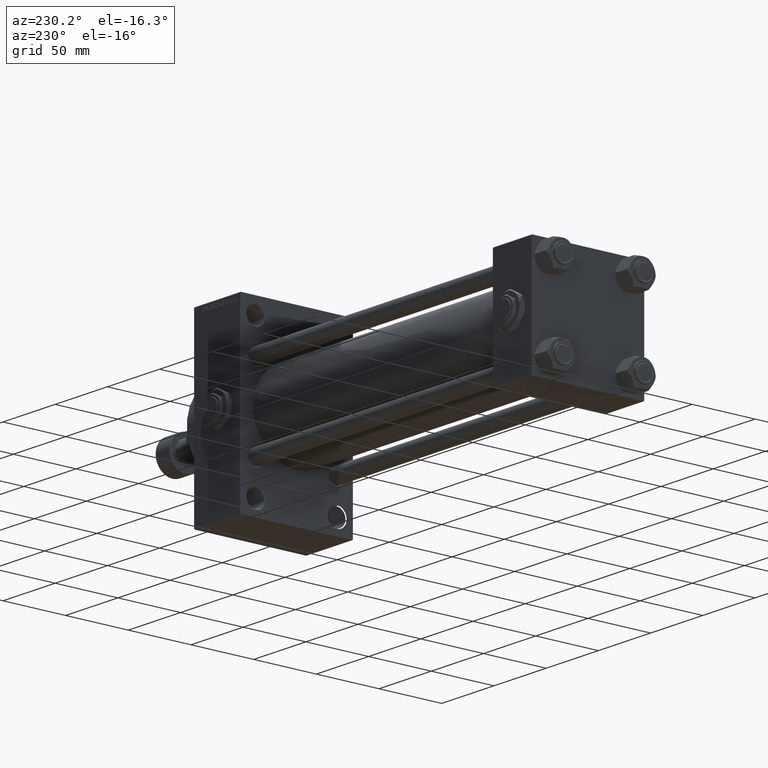
[diagram: clean part render]
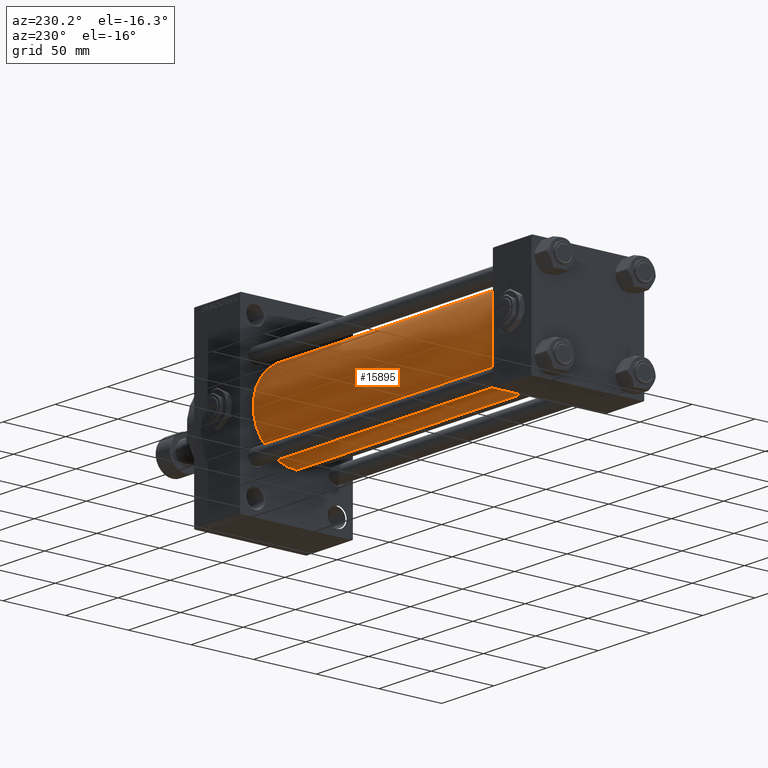
[diagram: same view with one face highlighted and labeled with its STEP entity id]
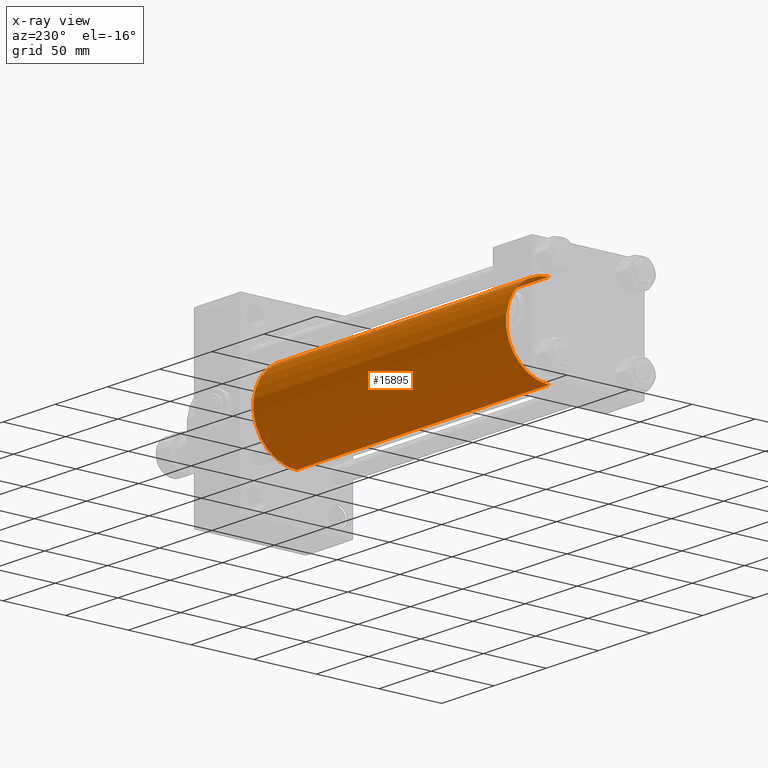
[diagram: x-ray of the same camera — body ghosted, the highlighted face saturated]
A machine part, auxiliary view. The second image highlights one B-rep face of the part: STEP entity #15895.
The next image is the same camera in x-ray: the body ghosted, the highlighted face saturated — about 0% of this face is hidden behind the body in this view.
In plain terms, the highlighted cylindrical surface (partial cylindrical patch) has radius 34.5 mm, axis along (-1, -0, -0).
Its self-contained STEP definition (entity closure, byte-faithful):
#587 = CARTESIAN_POINT ( 'NONE',  ( 37.00000000000000711, 1.622946243093158675E-15, -34.50000000000000000 ) ) ;
#2285 = VERTEX_POINT ( 'NONE', #12483 ) ;
#2567 = DIRECTION ( 'NONE',  ( 0.000000000000000000, 0.000000000000000000, -1.000000000000000000 ) ) ;
#3582 = ORIENTED_EDGE ( 'NONE', *, *, #14133, .T. ) ;
#9210 = DIRECTION ( 'NONE',  ( -1.000000000000000000, -0.000000000000000000, -0.000000000000000000 ) ) ;
#9764 = DIRECTION ( 'NONE',  ( -1.000000000000000000, -0.000000000000000000, -0.000000000000000000 ) ) ;
#10928 = DIRECTION ( 'NONE',  ( 0.000000000000000000, 0.000000000000000000, 1.000000000000000000 ) ) ;
#11332 = AXIS2_PLACEMENT_3D ( 'NONE', #46179, #26539, #10928 ) ;
#12483 = CARTESIAN_POINT ( 'NONE',  ( 37.00000000000000711, -2.602085213965210642E-15, 34.50000000000000000 ) ) ;
#13078 = ORIENTED_EDGE ( 'NONE', *, *, #22703, .F. ) ;
#14133 = EDGE_CURVE ( 'NONE', #31806, #16423, #24301, .T. ) ;
#15895 = ADVANCED_FACE ( 'NONE', ( #36946 ), #49283, .T. ) ;
#16057 = AXIS2_PLACEMENT_3D ( 'NONE', #22396, #18147, #2567 ) ;
#16423 = VERTEX_POINT ( 'NONE', #587 ) ;
#16818 = LINE ( 'NONE', #23880, #29794 ) ;
#18147 = DIRECTION ( 'NONE',  ( 1.000000000000000000, 0.000000000000000000, 0.000000000000000000 ) ) ;
#18696 = CARTESIAN_POINT ( 'NONE',  ( 278.9999999999999432, -2.602085213965210642E-15, 34.50000000000000000 ) ) ;
#21615 = CIRCLE ( 'NONE', #16057, 34.50000000000000000 ) ;
#22396 = CARTESIAN_POINT ( 'NONE',  ( 278.9999999999999432, -2.602085213965210642E-15, 0.000000000000000000 ) ) ;
#22703 = EDGE_CURVE ( 'NONE', #29462, #2285, #16818, .T. ) ;
#23880 = CARTESIAN_POINT ( 'NONE',  ( 278.9999999999999432, -2.602085213965210642E-15, 34.50000000000000000 ) ) ;
#24301 = LINE ( 'NONE', #28343, #42275 ) ;
#25115 = CARTESIAN_POINT ( 'NONE',  ( 278.9999999999999432, -2.602085213965210642E-15, 0.000000000000000000 ) ) ;
#26539 = DIRECTION ( 'NONE',  ( 1.000000000000000000, -0.000000000000000000, 0.000000000000000000 ) ) ;
#27986 = EDGE_LOOP ( 'NONE', ( #42184, #3582, #30589, #13078 ) ) ;
#28343 = CARTESIAN_POINT ( 'NONE',  ( 278.9999999999999432, 1.622946243093158675E-15, -34.50000000000000000 ) ) ;
#29462 = VERTEX_POINT ( 'NONE', #18696 ) ;
#29794 = VECTOR ( 'NONE', #39246, 1000.000000000000000 ) ;
#30589 = ORIENTED_EDGE ( 'NONE', *, *, #39463, .T. ) ;
#31806 = VERTEX_POINT ( 'NONE', #32586 ) ;
#32586 = CARTESIAN_POINT ( 'NONE',  ( 278.9999999999999432, 1.622946243093158675E-15, -34.50000000000000000 ) ) ;
#35062 = AXIS2_PLACEMENT_3D ( 'NONE', #25115, #9764, #48512 ) ;
#35709 = EDGE_CURVE ( 'NONE', #31806, #29462, #21615, .T. ) ;
#36946 = FACE_OUTER_BOUND ( 'NONE', #27986, .T. ) ;
#37032 = CIRCLE ( 'NONE', #11332, 34.50000000000000000 ) ;
#39246 = DIRECTION ( 'NONE',  ( -1.000000000000000000, -0.000000000000000000, -0.000000000000000000 ) ) ;
#39463 = EDGE_CURVE ( 'NONE', #16423, #2285, #37032, .T. ) ;
#42184 = ORIENTED_EDGE ( 'NONE', *, *, #35709, .F. ) ;
#42275 = VECTOR ( 'NONE', #9210, 1000.000000000000000 ) ;
#46179 = CARTESIAN_POINT ( 'NONE',  ( 37.00000000000000711, -2.602085213965210642E-15, 0.000000000000000000 ) ) ;
#48512 = DIRECTION ( 'NONE',  ( 0.000000000000000000, 0.000000000000000000, 1.000000000000000000 ) ) ;
#49283 = CYLINDRICAL_SURFACE ( 'NONE', #35062, 34.50000000000000000 ) ;